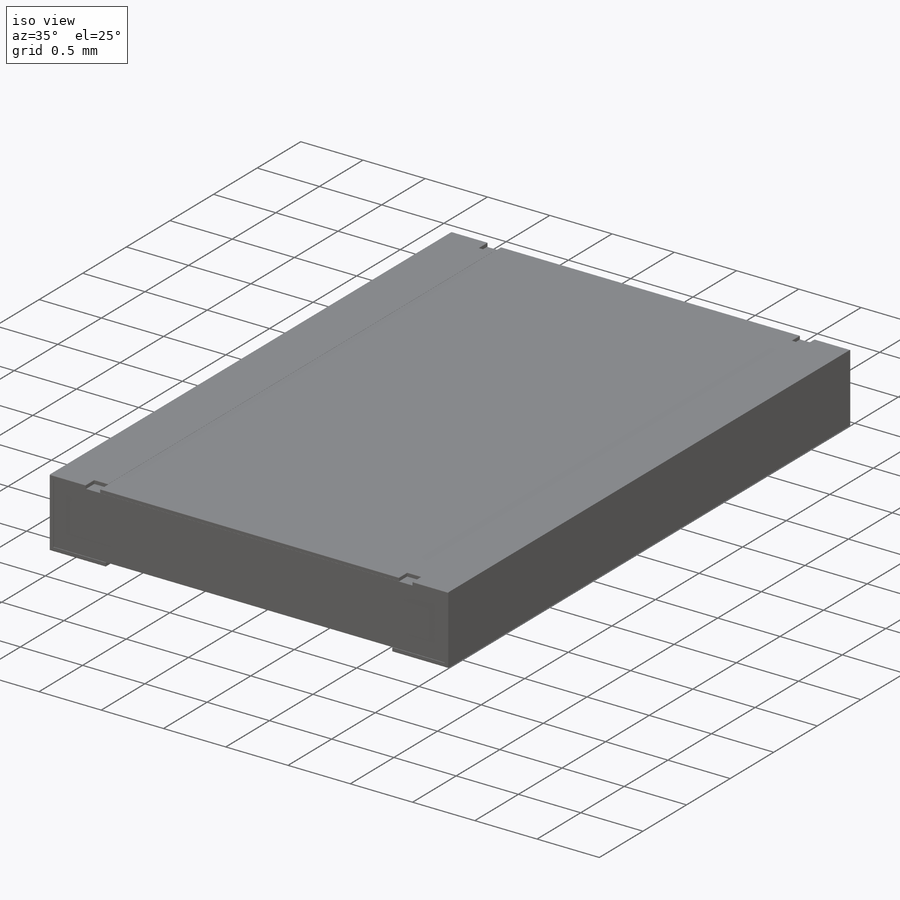
[diagram: iso view]
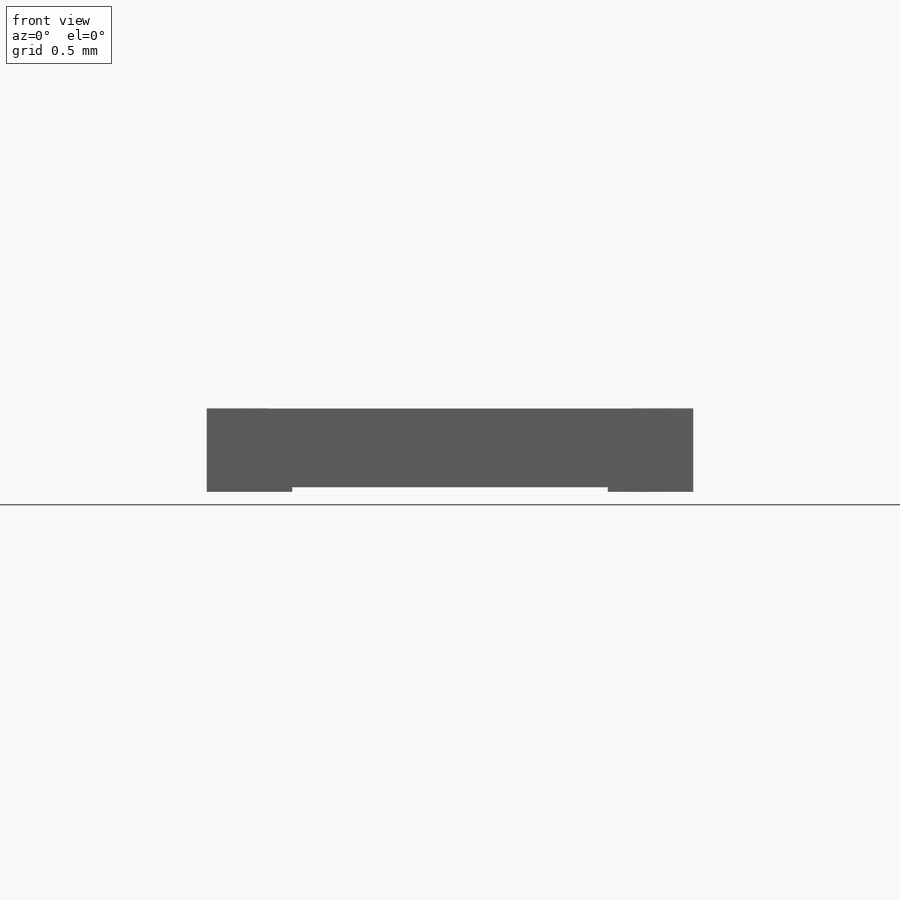
[diagram: front view]
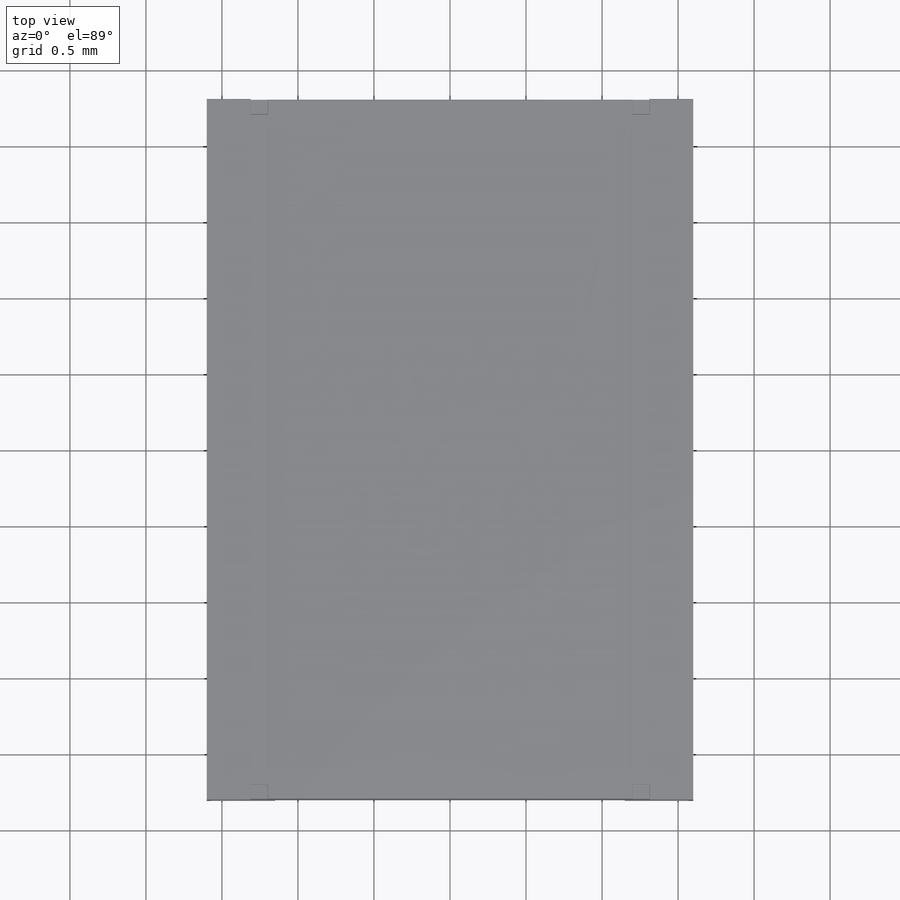
[diagram: top view]
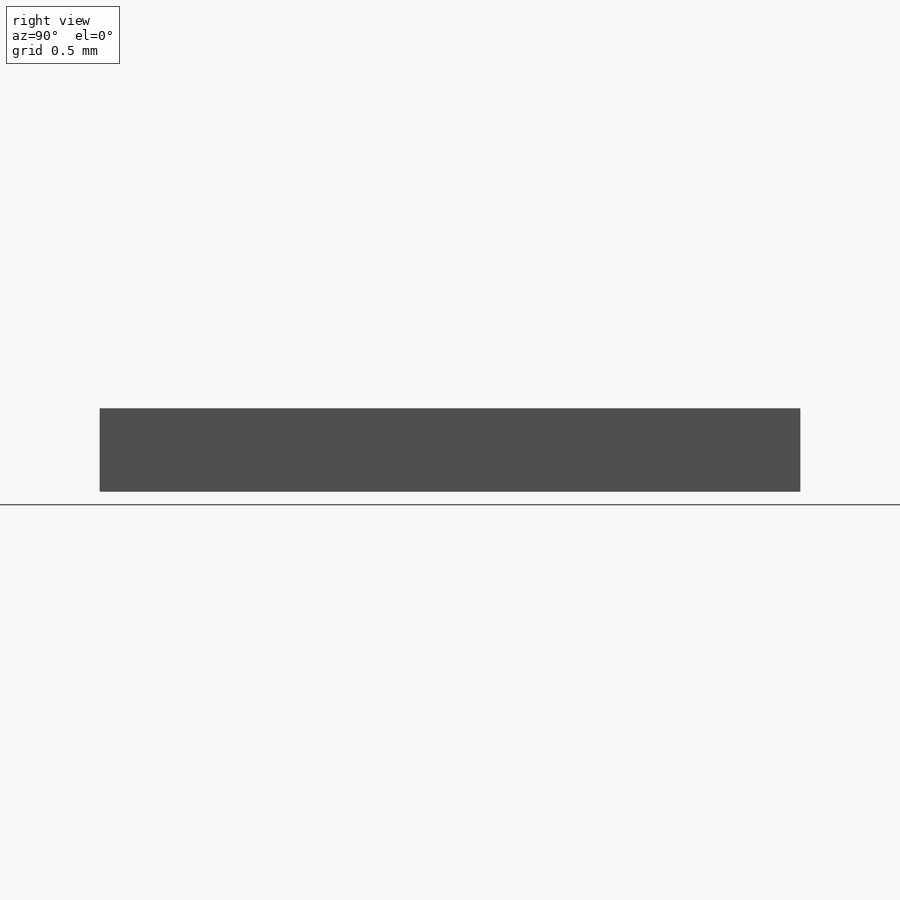
[diagram: right view]
SOLIDWORKS PART (.sldprt)
format: sldprt  version: not decoded by parser v0  size: 751,616 bytes
history: native  units: mm
features: sketch x7, cut_extrude x4, mirror x3, extrude x2, plane x2, material x1, fillet x1 (+13 scaffold rows collapsed)
feature tree (33):
  scaffold x13  (default folders/planes/origin — collapsed)
  material  "Material <not specified>"
  sketch  "Sketch1"  dims[c1.L=1.0mm c1.W=0.5mm c2.L=3.2mm c2.W=4.6mm]
  extrude  "Boss-Extrude1"  Depth=0.55mm
  sketch  "Sketch2"  dims[T1=0.45mm T2-Equal=0.4mm D3=0.03mm]
  extrude  "Boss-Extrude2"  Depth=0.01mm
  plane  "Plane1"
  sketch  "Sketch3"  dims[c1.T2=0.4mm c1.D2=~0.176119mm c2.D2=~178.130149deg c2.T2-Space=0.1125mm c2.D3=0.1mm]
  cut_extrude  "Cut-Extrude1"  Depth=0.03mm
  sketch  "Sketch5"  dims[D1=0.1125mm D2=0.1mm D3=0.1508mm]
  cut_extrude  "Cut-Extrude2"  Depth=0.03mm
  mirror  "Mirror4"
  plane  "Plane2"
  mirror  "Mirror5"
  sketch  "Sketch6"
  cut_extrude  "Cut-Extrude3"  Depth=0.001mm
  sketch  "Sketch7"
  cut_extrude  "Cut-Extrude4"  Depth=0.001mm
  mirror  "Mirror6"
  fillet  "Fillet5"  Radius=0.005mm
  sketch  "Sketch8"
decode coverage: 11 of 17 modeling features carry decoded parameters
note: ~ marks probable driven/reference dimensions
note: suppression state not decoded; provenance and decode notes live in map.json
